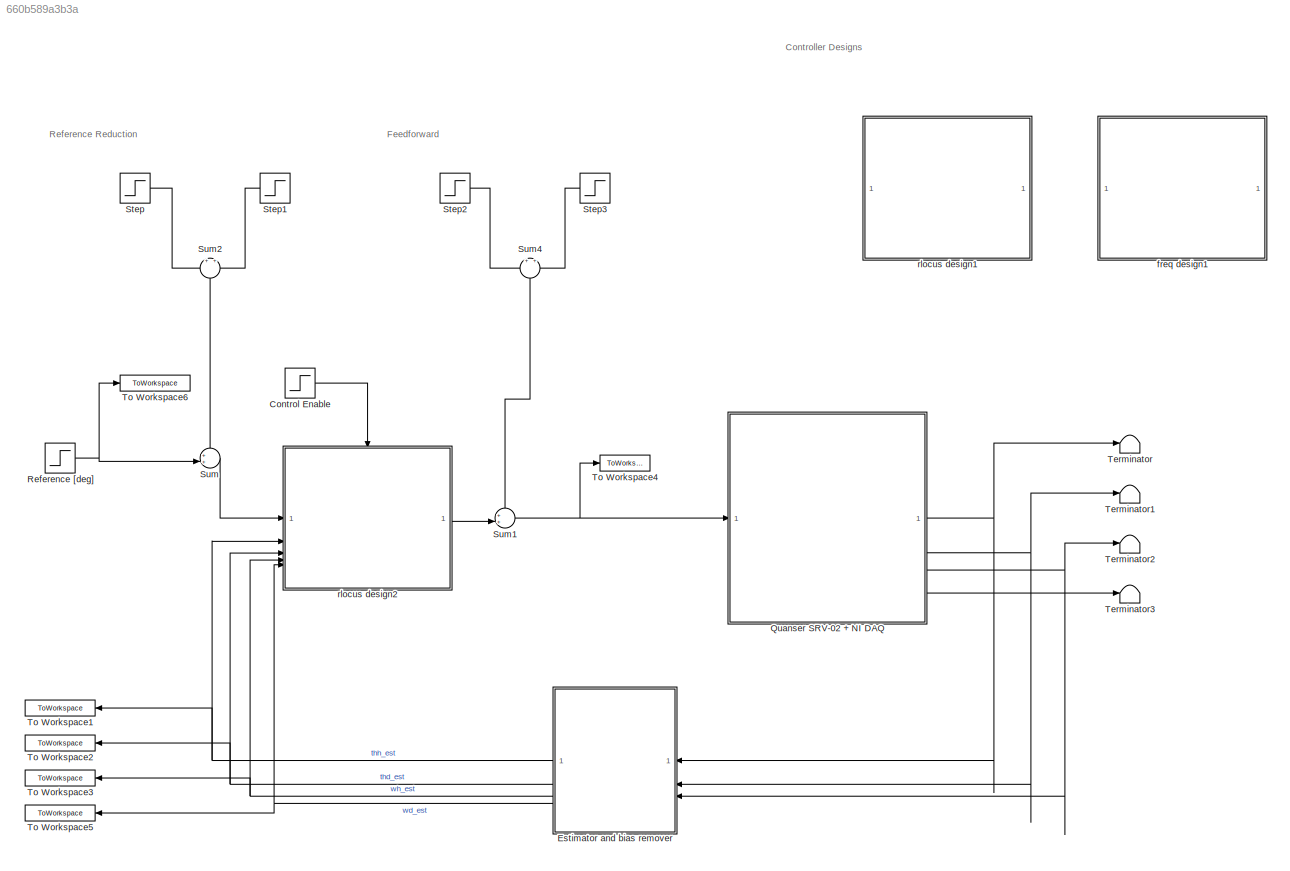
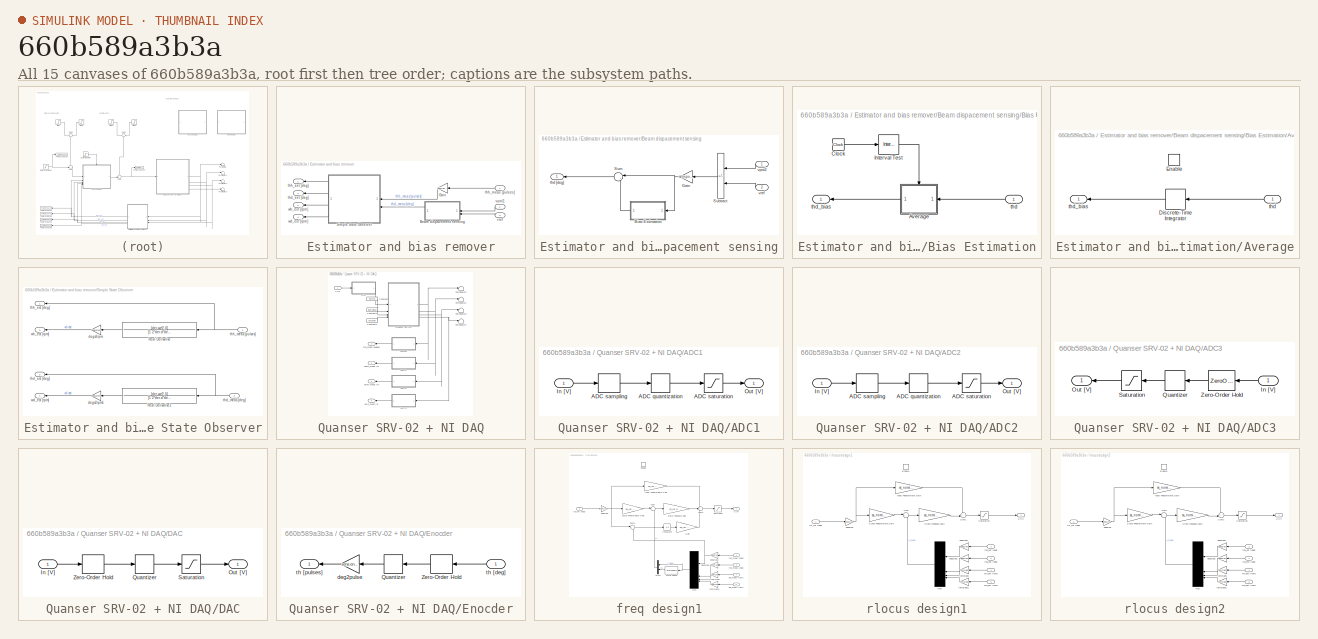
[diagram: thumbnail index - all 15 canvases of the model, root first then tree order]
MODEL slx_660b589a3b3a
KIND model
CONFIG AbsTol = auto
CONFIG EnableMultiTasking = off
CONFIG FixedStep = auto
CONFIG MaxStep = auto
CONFIG MinStep = auto
CONFIG RelTol = auto
CONFIG SampleTimeConstraint = Unconstrained
CONFIG SolverName = VariableStepAuto
CONFIG StartTime = 0.0
CONFIG StopTime = 2
BLOCK [Step] Control Enable
  SampleTime = 0
  Time = 0.8
BLOCK [SubSystem] Estimator and bias remover
  NameLocation = top
BLOCK [SubSystem] Estimator and bias remover/Beam dispacement sensing
BLOCK [SubSystem] Estimator and bias remover/Beam dispacement sensing/Bias Estimation
BLOCK [SubSystem] Estimator and bias remover/Beam dispacement sensing/Bias Estimation/Average
BLOCK [DiscreteIntegrator] Estimator and bias remover/Beam dispacement sensing/Bias Estimation/Average/Discrete-Time Integrator
  ICPrevOutput = DiscIntNeverNeededParam
  ICPrevScaledInput = DiscIntNeverNeededParam
  InitialConditionSetting = Auto
  NameLocation = top
  SampleTime = Ts
  gainval = 1/(0.7-0.2)
BLOCK [EnablePort] Estimator and bias remover/Beam dispacement sensing/Bias Estimation/Average/Enable
BLOCK [Inport] Estimator and bias remover/Beam dispacement sensing/Bias Estimation/Average/thd
  NameLocation = top
BLOCK [Outport] Estimator and bias remover/Beam dispacement sensing/Bias Estimation/Average/thd_bias
  NameLocation = top
BLOCK [Clock] Estimator and bias remover/Beam dispacement sensing/Bias Estimation/Clock
BLOCK [Reference] Estimator and bias remover/Beam dispacement sensing/Bias Estimation/Interval Test  REF=simulink/Logic and Bit
Operations/Interval Test
  SourceBlock = simulink/Logic and Bit\nOperations/Interval Test
  SourceType = Interval Test
BLOCK [Inport] Estimator and bias remover/Beam dispacement sensing/Bias Estimation/thd
  NameLocation = top
BLOCK [Outport] Estimator and bias remover/Beam dispacement sensing/Bias Estimation/thd_bias
  NameLocation = top
BLOCK [Gain] Estimator and bias remover/Beam dispacement sensing/Gain
  Gain = sens.pot2.V2deg
  NameLocation = top
BLOCK [Sum] Estimator and bias remover/Beam dispacement sensing/Subtract
  IconShape = rectangular
  Inputs = +-
  NameLocation = top
BLOCK [Sum] Estimator and bias remover/Beam dispacement sensing/Sum
  Inputs = |+-
  NameLocation = top
BLOCK [Outport] Estimator and bias remover/Beam dispacement sensing/thd [deg]
  NameLocation = top
BLOCK [Inport] Estimator and bias remover/Beam dispacement sensing/vpot2
  NameLocation = top
BLOCK [Inport] Estimator and bias remover/Beam dispacement sensing/vref
  NameLocation = top
  Port = 2
BLOCK [Gain] Estimator and bias remover/Gain
  Gain = sens.enc.pulse2deg
  NameLocation = top
BLOCK [SubSystem] Estimator and bias remover/Simple State Observer
  NameLocation = top
BLOCK [TransferFcn] Estimator and bias remover/Simple State Observer/Real Derivative
  Denominator = [1 2*der.d*der.wc der.wc^2]
  NameLocation = top
  Numerator = [der.wc^2 0]
BLOCK [TransferFcn] Estimator and bias remover/Simple State Observer/Real Derivative1
  Denominator = [1 2*der.d*der.wc der.wc^2]
  NameLocation = top
  Numerator = [der.wc^2 0]
BLOCK [Gain] Estimator and bias remover/Simple State Observer/degs2rpm
  Gain = degs2rpm
BLOCK [Gain] Estimator and bias remover/Simple State Observer/degs2rpm1
  Gain = degs2rpm
BLOCK [Outport] Estimator and bias remover/Simple State Observer/thd_est [deg]
  NameLocation = top
  Port = 2
BLOCK [Inport] Estimator and bias remover/Simple State Observer/thd_meas [deg]
  NameLocation = top
  Port = 2
BLOCK [Outport] Estimator and bias remover/Simple State Observer/thh_est [deg]
  NameLocation = top
BLOCK [Inport] Estimator and bias remover/Simple State Observer/thh_meas [pulses]
  NameLocation = top
BLOCK [Outport] Estimator and bias remover/Simple State Observer/wd_est [rpm]
  NameLocation = top
  Port = 4
BLOCK [Outport] Estimator and bias remover/Simple State Observer/wh_est [rpm]
  NameLocation = top
  Port = 3
BLOCK [Outport] Estimator and bias remover/thd_est [deg]
  NameLocation = top
  Port = 2
BLOCK [Outport] Estimator and bias remover/thh_est [deg]
  NameLocation = top
BLOCK [Inport] Estimator and bias remover/thh_meas [pulses]
  NameLocation = top
BLOCK [Inport] Estimator and bias remover/vpot2
  NameLocation = top
  Port = 2
BLOCK [Inport] Estimator and bias remover/vref
  Port = 3
BLOCK [Outport] Estimator and bias remover/wd_est [rpm]
  NameLocation = top
  Port = 4
BLOCK [Outport] Estimator and bias remover/wh_est [rpm]
  NameLocation = top
  Port = 3
BLOCK [SubSystem] Quanser SRV-02 + NI DAQ
BLOCK [SubSystem] Quanser SRV-02 + NI DAQ/ADC1
BLOCK [Quantizer] Quanser SRV-02 + NI DAQ/ADC1/ADC quantization
  QuantizationInterval = daq.adc.q
BLOCK [ZeroOrderHold] Quanser SRV-02 + NI DAQ/ADC1/ADC sampling
  SampleTime = Ts
BLOCK [Saturate] Quanser SRV-02 + NI DAQ/ADC1/ADC saturation
  LowerLimit = -daq.adc.fs
  UpperLimit = daq.adc.fs
BLOCK [Inport] Quanser SRV-02 + NI DAQ/ADC1/In [V]
BLOCK [Outport] Quanser SRV-02 + NI DAQ/ADC1/Out [V]
BLOCK [SubSystem] Quanser SRV-02 + NI DAQ/ADC2
BLOCK [Quantizer] Quanser SRV-02 + NI DAQ/ADC2/ADC quantization
  QuantizationInterval = daq.adc.q
BLOCK [ZeroOrderHold] Quanser SRV-02 + NI DAQ/ADC2/ADC sampling
  SampleTime = Ts
BLOCK [Saturate] Quanser SRV-02 + NI DAQ/ADC2/ADC saturation
  LowerLimit = -daq.adc.fs
  UpperLimit = daq.adc.fs
BLOCK [Inport] Quanser SRV-02 + NI DAQ/ADC2/In [V]
BLOCK [Outport] Quanser SRV-02 + NI DAQ/ADC2/Out [V]
BLOCK [SubSystem] Quanser SRV-02 + NI DAQ/ADC3
BLOCK [Inport] Quanser SRV-02 + NI DAQ/ADC3/In [V]
BLOCK [Outport] Quanser SRV-02 + NI DAQ/ADC3/Out [V]
BLOCK [Quantizer] Quanser SRV-02 + NI DAQ/ADC3/Quantizer
  QuantizationInterval = daq.adc.q
BLOCK [Saturate] Quanser SRV-02 + NI DAQ/ADC3/Saturation
  LowerLimit = -daq.adc.fs
  UpperLimit = daq.adc.fs
BLOCK [ZeroOrderHold] Quanser SRV-02 + NI DAQ/ADC3/Zero-Order Hold
  SampleTime = Ts
BLOCK [Constant] Quanser SRV-02 + NI DAQ/Constant
  Value = fricType
BLOCK [Constant] Quanser SRV-02 + NI DAQ/Constant1
  SampleTime = Inf
  Value = thb0*pi/180
BLOCK [Constant] Quanser SRV-02 + NI DAQ/Constant2
  SampleTime = Inf
  Value = lockShaft
BLOCK [SubSystem] Quanser SRV-02 + NI DAQ/DAC
BLOCK [Inport] Quanser SRV-02 + NI DAQ/DAC/In [V]
BLOCK [Outport] Quanser SRV-02 + NI DAQ/DAC/Out [V]
BLOCK [Quantizer] Quanser SRV-02 + NI DAQ/DAC/Quantizer
  QuantizationInterval = daq.dac.q
BLOCK [Saturate] Quanser SRV-02 + NI DAQ/DAC/Saturation
  LowerLimit = -daq.dac.fs
  UpperLimit = daq.dac.fs
BLOCK [ZeroOrderHold] Quanser SRV-02 + NI DAQ/DAC/Zero-Order Hold
  SampleTime = Ts
BLOCK [SubSystem] Quanser SRV-02 + NI DAQ/Enocder
BLOCK [Quantizer] Quanser SRV-02 + NI DAQ/Enocder/Quantizer
  QuantizationInterval = sens.enc.pulse2deg
BLOCK [ZeroOrderHold] Quanser SRV-02 + NI DAQ/Enocder/Zero-Order Hold
  SampleTime = Ts
BLOCK [Gain] Quanser SRV-02 + NI DAQ/Enocder/deg2pulse
  Gain = sens.enc.deg2pulse
BLOCK [Inport] Quanser SRV-02 + NI DAQ/Enocder/th [deg]
BLOCK [Outport] Quanser SRV-02 + NI DAQ/Enocder/th [pulses]
BLOCK [ModelReference] Quanser SRV-02 + NI DAQ/Quanser SRV-02
  CopyOfModelProtected = on
  ModelNameDialog = SRV02RL_win64.slxp
  ModelReferenceVersion = 1.76
BLOCK [Terminator] Quanser SRV-02 + NI DAQ/Terminator1
BLOCK [Terminator] Quanser SRV-02 + NI DAQ/Terminator2
BLOCK [Terminator] Quanser SRV-02 + NI DAQ/Terminator3
BLOCK [Terminator] Quanser SRV-02 + NI DAQ/Terminator4
BLOCK [Outport] Quanser SRV-02 + NI DAQ/thh_meas [pulses]
BLOCK [Inport] Quanser SRV-02 + NI DAQ/u [V]
BLOCK [Outport] Quanser SRV-02 + NI DAQ/uPot2_meas [V]
  Port = 2
BLOCK [Outport] Quanser SRV-02 + NI DAQ/uRef_meas [V]
  Port = 3
BLOCK [Outport] Quanser SRV-02 + NI DAQ/uRs_meas [V]
  Port = 4
BLOCK [Step] Reference [deg]
  After = simul.stepdeg
  SampleTime = Ts
BLOCK [Step] Step
  After = -challenge.refAmp
  SampleTime = 0
BLOCK [Step] Step1
  After = challenge.refAmp
  NameLocation = top
  SampleTime = 0
  Time = 1 + challenge.tinterval
BLOCK [Step] Step2
  After = 50
  SampleTime = 0
BLOCK [Step] Step3
  After = -50
  NameLocation = top
  SampleTime = 0
  Time = 1 + challenge.uinterval
BLOCK [Sum] Sum
  Inputs = ++|
BLOCK [Sum] Sum1
  Inputs = ++|
BLOCK [Sum] Sum2
  Inputs = +|+
  NameLocation = left
BLOCK [Sum] Sum4
  Inputs = +|+
  NameLocation = left
BLOCK [Terminator] Terminator
BLOCK [Terminator] Terminator1
BLOCK [Terminator] Terminator2
BLOCK [Terminator] Terminator3
BLOCK [ToWorkspace] To Workspace1
  FixptAsFi = on
  MaxDataPoints = inf
  SampleTime = Ts
  SaveFormat = Structure With Time
  VariableName = thh_est
BLOCK [ToWorkspace] To Workspace2
  FixptAsFi = on
  MaxDataPoints = inf
  SampleTime = Ts
  SaveFormat = Structure With Time
  VariableName = thd_est
BLOCK [ToWorkspace] To Workspace3
  FixptAsFi = on
  MaxDataPoints = inf
  SampleTime = Ts
  SaveFormat = Structure With Time
  VariableName = wh_est
BLOCK [ToWorkspace] To Workspace4
  FixptAsFi = on
  MaxDataPoints = inf
  SampleTime = Ts
  SaveFormat = Structure With Time
  VariableName = u
BLOCK [ToWorkspace] To Workspace5
  FixptAsFi = on
  MaxDataPoints = inf
  SampleTime = Ts
  SaveFormat = Structure With Time
  VariableName = wd_est
BLOCK [ToWorkspace] To Workspace6
  FixptAsFi = on
  MaxDataPoints = inf
  NameLocation = top
  SampleTime = -1
  SaveFormat = Structure With Time
  VariableName = thh_ref
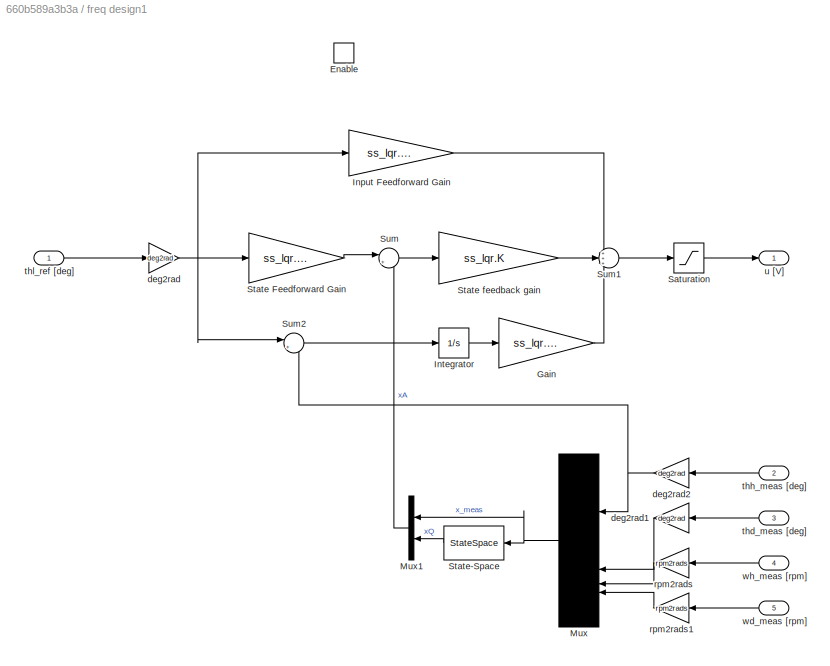
BLOCK [SubSystem] freq design1
BLOCK [EnablePort] freq design1/Enable
BLOCK [Gain] freq design1/Gain
  Gain = ss_lqr.Ki
BLOCK [Gain] freq design1/Input Feedforward Gain
  Gain = ss_lqr.Nu
BLOCK [Integrator] freq design1/Integrator
BLOCK [Mux] freq design1/Mux
  DisplayOption = signals
  NameLocation = top
BLOCK [Mux] freq design1/Mux1
  DisplayOption = bar
  Inputs = 2
  NameLocation = top
BLOCK [Saturate] freq design1/Saturation
  LowerLimit = -10
  UpperLimit = 10
BLOCK [Gain] freq design1/State Feedforward Gain
  Gain = ss_lqr.Nx
BLOCK [Gain] freq design1/State feedback gain
  Gain = ss_lqr.K
  Multiplication = Matrix(K*u)
BLOCK [StateSpace] freq design1/State-Space
  A = ss_lqr.AQ
  B = ss_lqr.BQ
  C = ss_lqr.I
  D = ss_lqr.zero
  InitialCondition = 0
  NameLocation = top
BLOCK [Sum] freq design1/Sum
  Inputs = |+-
BLOCK [Sum] freq design1/Sum1
  Inputs = +++
BLOCK [Sum] freq design1/Sum2
  Inputs = |+-
BLOCK [Gain] freq design1/deg2rad
  Gain = deg2rad
BLOCK [Gain] freq design1/deg2rad1
  Gain = deg2rad
  NameLocation = top
BLOCK [Gain] freq design1/deg2rad2
  Gain = deg2rad
  NameLocation = top
BLOCK [Gain] freq design1/rpm2rads
  Gain = rpm2rads
BLOCK [Gain] freq design1/rpm2rads1
  Gain = rpm2rads
BLOCK [Inport] freq design1/thd_meas [deg]
  NameLocation = top
  Port = 3
BLOCK [Inport] freq design1/thh_meas [deg]
  NameLocation = top
  Port = 2
BLOCK [Inport] freq design1/thl_ref [deg]
BLOCK [Outport] freq design1/u [V]
BLOCK [Inport] freq design1/wd_meas [rpm]
  NameLocation = top
  Port = 5
BLOCK [Inport] freq design1/wh_meas [rpm]
  NameLocation = top
  Port = 4
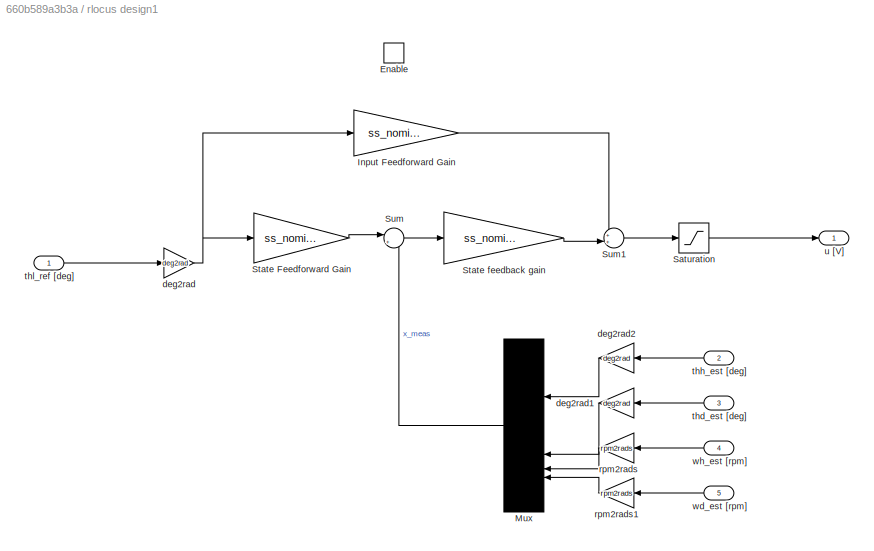
BLOCK [SubSystem] rlocus design1
BLOCK [EnablePort] rlocus design1/Enable
BLOCK [Gain] rlocus design1/Input Feedforward Gain
  Gain = ss_nominal.Nu
BLOCK [Mux] rlocus design1/Mux
  DisplayOption = signals
  NameLocation = top
BLOCK [Saturate] rlocus design1/Saturation
  LowerLimit = -10
  UpperLimit = 10
BLOCK [Gain] rlocus design1/State Feedforward Gain
  Gain = ss_nominal.Nx
BLOCK [Gain] rlocus design1/State feedback gain
  Gain = ss_nominal.K
  Multiplication = Matrix(K*u)
BLOCK [Sum] rlocus design1/Sum
  Inputs = |+-
BLOCK [Sum] rlocus design1/Sum1
  Inputs = ++|
BLOCK [Gain] rlocus design1/deg2rad
  Gain = deg2rad
BLOCK [Gain] rlocus design1/deg2rad1
  Gain = deg2rad
  NameLocation = top
BLOCK [Gain] rlocus design1/deg2rad2
  Gain = deg2rad
  NameLocation = top
BLOCK [Gain] rlocus design1/rpm2rads
  Gain = rpm2rads
BLOCK [Gain] rlocus design1/rpm2rads1
  Gain = rpm2rads
BLOCK [Inport] rlocus design1/thd_est [deg]
  NameLocation = top
  Port = 3
BLOCK [Inport] rlocus design1/thh_est [deg]
  NameLocation = top
  Port = 2
BLOCK [Inport] rlocus design1/thl_ref [deg]
BLOCK [Outport] rlocus design1/u [V]
BLOCK [Inport] rlocus design1/wd_est [rpm]
  NameLocation = top
  Port = 5
BLOCK [Inport] rlocus design1/wh_est [rpm]
  NameLocation = top
  Port = 4
BLOCK [SubSystem] rlocus design2
BLOCK [EnablePort] rlocus design2/Enable
BLOCK [Gain] rlocus design2/Input Feedforward Gain
  Gain = ss_nominal.Nu
BLOCK [Mux] rlocus design2/Mux
  DisplayOption = signals
  NameLocation = top
BLOCK [Saturate] rlocus design2/Saturation
  LowerLimit = -10
  UpperLimit = 10
BLOCK [Gain] rlocus design2/State Feedforward Gain
  Gain = ss_nominal.Nx
BLOCK [Gain] rlocus design2/State feedback gain
  Gain = ss_nominal.K
  Multiplication = Matrix(K*u)
BLOCK [Sum] rlocus design2/Sum
  Inputs = |+-
BLOCK [Sum] rlocus design2/Sum1
  Inputs = ++|
BLOCK [Gain] rlocus design2/deg2rad
  Gain = deg2rad
BLOCK [Gain] rlocus design2/deg2rad1
  Gain = deg2rad
  NameLocation = top
BLOCK [Gain] rlocus design2/deg2rad2
  Gain = deg2rad
  NameLocation = top
BLOCK [Gain] rlocus design2/rpm2rads
  Gain = rpm2rads
BLOCK [Gain] rlocus design2/rpm2rads1
  Gain = rpm2rads
BLOCK [Inport] rlocus design2/thd_est [deg]
  NameLocation = top
  Port = 3
BLOCK [Inport] rlocus design2/thh_est [deg]
  NameLocation = top
  Port = 2
BLOCK [Inport] rlocus design2/thl_ref [deg]
BLOCK [Outport] rlocus design2/u [V]
BLOCK [Inport] rlocus design2/wd_est [rpm]
  NameLocation = top
  Port = 5
BLOCK [Inport] rlocus design2/wh_est [rpm]
  NameLocation = top
  Port = 4
ANNOTATION (root): Controller Designs
ANNOTATION (root): Feedforward
ANNOTATION (root): Reference Reduction
LINE Control Enable:1 -> rlocus design2:enable
LINE Estimator and bias remover/Beam dispacement sensing/Bias Estimation/Average/Discrete-Time Integrator:1 -> Estimator and bias remover/Beam dispacement sensing/Bias Estimation/Average/thd_bias:1
LINE Estimator and bias remover/Beam dispacement sensing/Bias Estimation/Average/thd:1 -> Estimator and bias remover/Beam dispacement sensing/Bias Estimation/Average/Discrete-Time Integrator:1
LINE Estimator and bias remover/Beam dispacement sensing/Bias Estimation/Average:1 -> Estimator and bias remover/Beam dispacement sensing/Bias Estimation/thd_bias:1
LINE Estimator and bias remover/Beam dispacement sensing/Bias Estimation/Clock:1 -> Estimator and bias remover/Beam dispacement sensing/Bias Estimation/Interval Test:1
LINE Estimator and bias remover/Beam dispacement sensing/Bias Estimation/Interval Test:1 -> Estimator and bias remover/Beam dispacement sensing/Bias Estimation/Average:enable
LINE Estimator and bias remover/Beam dispacement sensing/Bias Estimation/thd:1 -> Estimator and bias remover/Beam dispacement sensing/Bias Estimation/Average:1
LINE Estimator and bias remover/Beam dispacement sensing/Bias Estimation:1 -> Estimator and bias remover/Beam dispacement sensing/Sum:2
NET Estimator and bias remover/Beam dispacement sensing/Gain:1 -> Estimator and bias remover/Beam dispacement sensing/Bias Estimation:1, Estimator and bias remover/Beam dispacement sensing/Sum:1
LINE Estimator and bias remover/Beam dispacement sensing/Subtract:1 -> Estimator and bias remover/Beam dispacement sensing/Gain:1
LINE Estimator and bias remover/Beam dispacement sensing/Sum:1 -> Estimator and bias remover/Beam dispacement sensing/thd [deg]:1
LINE Estimator and bias remover/Beam dispacement sensing/vpot2:1 -> Estimator and bias remover/Beam dispacement sensing/Subtract:1
LINE Estimator and bias remover/Beam dispacement sensing/vref:1 -> Estimator and bias remover/Beam dispacement sensing/Subtract:2
LINE Estimator and bias remover/Beam dispacement sensing:1 -> Estimator and bias remover/Simple State Observer:2
LINE Estimator and bias remover/Gain:1 -> Estimator and bias remover/Simple State Observer:1
LINE Estimator and bias remover/Simple State Observer/Real Derivative1:1 -> Estimator and bias remover/Simple State Observer/degs2rpm1:1
LINE Estimator and bias remover/Simple State Observer/Real Derivative:1 -> Estimator and bias remover/Simple State Observer/degs2rpm:1
LINE Estimator and bias remover/Simple State Observer/degs2rpm1:1 -> Estimator and bias remover/Simple State Observer/wd_est [rpm]:1
LINE Estimator and bias remover/Simple State Observer/degs2rpm:1 -> Estimator and bias remover/Simple State Observer/wh_est [rpm]:1
NET Estimator and bias remover/Simple State Observer/thd_meas [deg]:1 -> Estimator and bias remover/Simple State Observer/Real Derivative1:1, Estimator and bias remover/Simple State Observer/thd_est [deg]:1
NET Estimator and bias remover/Simple State Observer/thh_meas [pulses]:1 -> Estimator and bias remover/Simple State Observer/Real Derivative:1, Estimator and bias remover/Simple State Observer/thh_est [deg]:1
LINE Estimator and bias remover/Simple State Observer:1 -> Estimator and bias remover/thh_est [deg]:1
LINE Estimator and bias remover/Simple State Observer:2 -> Estimator and bias remover/thd_est [deg]:1
LINE Estimator and bias remover/Simple State Observer:3 -> Estimator and bias remover/wh_est [rpm]:1
LINE Estimator and bias remover/Simple State Observer:4 -> Estimator and bias remover/wd_est [rpm]:1
LINE Estimator and bias remover/thh_meas [pulses]:1 -> Estimator and bias remover/Gain:1
LINE Estimator and bias remover/vpot2:1 -> Estimator and bias remover/Beam dispacement sensing:1
LINE Estimator and bias remover/vref:1 -> Estimator and bias remover/Beam dispacement sensing:2
NET Estimator and bias remover:1 -> To Workspace1:1, rlocus design2:2
NET Estimator and bias remover:2 -> To Workspace2:1, rlocus design2:3
NET Estimator and bias remover:3 -> To Workspace3:1, rlocus design2:4
NET Estimator and bias remover:4 -> To Workspace5:1, rlocus design2:5
LINE Quanser SRV-02 + NI DAQ/ADC1/ADC quantization:1 -> Quanser SRV-02 + NI DAQ/ADC1/ADC saturation:1
LINE Quanser SRV-02 + NI DAQ/ADC1/ADC sampling:1 -> Quanser SRV-02 + NI DAQ/ADC1/ADC quantization:1
LINE Quanser SRV-02 + NI DAQ/ADC1/ADC saturation:1 -> Quanser SRV-02 + NI DAQ/ADC1/Out [V]:1
LINE Quanser SRV-02 + NI DAQ/ADC1/In [V]:1 -> Quanser SRV-02 + NI DAQ/ADC1/ADC sampling:1
LINE Quanser SRV-02 + NI DAQ/ADC1:1 -> Quanser SRV-02 + NI DAQ/uPot2_meas [V]:1
LINE Quanser SRV-02 + NI DAQ/ADC2/ADC quantization:1 -> Quanser SRV-02 + NI DAQ/ADC2/ADC saturation:1
LINE Quanser SRV-02 + NI DAQ/ADC2/ADC sampling:1 -> Quanser SRV-02 + NI DAQ/ADC2/ADC quantization:1
LINE Quanser SRV-02 + NI DAQ/ADC2/ADC saturation:1 -> Quanser SRV-02 + NI DAQ/ADC2/Out [V]:1
LINE Quanser SRV-02 + NI DAQ/ADC2/In [V]:1 -> Quanser SRV-02 + NI DAQ/ADC2/ADC sampling:1
LINE Quanser SRV-02 + NI DAQ/ADC2:1 -> Quanser SRV-02 + NI DAQ/uRef_meas [V]:1
LINE Quanser SRV-02 + NI DAQ/ADC3/In [V]:1 -> Quanser SRV-02 + NI DAQ/ADC3/Zero-Order Hold:1
LINE Quanser SRV-02 + NI DAQ/ADC3/Quantizer:1 -> Quanser SRV-02 + NI DAQ/ADC3/Saturation:1
LINE Quanser SRV-02 + NI DAQ/ADC3/Saturation:1 -> Quanser SRV-02 + NI DAQ/ADC3/Out [V]:1
LINE Quanser SRV-02 + NI DAQ/ADC3/Zero-Order Hold:1 -> Quanser SRV-02 + NI DAQ/ADC3/Quantizer:1
LINE Quanser SRV-02 + NI DAQ/ADC3:1 -> Quanser SRV-02 + NI DAQ/uRs_meas [V]:1
LINE Quanser SRV-02 + NI DAQ/Constant1:1 -> Quanser SRV-02 + NI DAQ/Quanser SRV-02:3
LINE Quanser SRV-02 + NI DAQ/Constant2:1 -> Quanser SRV-02 + NI DAQ/Quanser SRV-02:4
LINE Quanser SRV-02 + NI DAQ/Constant:1 -> Quanser SRV-02 + NI DAQ/Quanser SRV-02:2
LINE Quanser SRV-02 + NI DAQ/DAC/In [V]:1 -> Quanser SRV-02 + NI DAQ/DAC/Zero-Order Hold:1
LINE Quanser SRV-02 + NI DAQ/DAC/Quantizer:1 -> Quanser SRV-02 + NI DAQ/DAC/Saturation:1
LINE Quanser SRV-02 + NI DAQ/DAC/Saturation:1 -> Quanser SRV-02 + NI DAQ/DAC/Out [V]:1
LINE Quanser SRV-02 + NI DAQ/DAC/Zero-Order Hold:1 -> Quanser SRV-02 + NI DAQ/DAC/Quantizer:1
LINE Quanser SRV-02 + NI DAQ/DAC:1 -> Quanser SRV-02 + NI DAQ/Quanser SRV-02:1
LINE Quanser SRV-02 + NI DAQ/Enocder/Quantizer:1 -> Quanser SRV-02 + NI DAQ/Enocder/deg2pulse:1
LINE Quanser SRV-02 + NI DAQ/Enocder/Zero-Order Hold:1 -> Quanser SRV-02 + NI DAQ/Enocder/Quantizer:1
LINE Quanser SRV-02 + NI DAQ/Enocder/deg2pulse:1 -> Quanser SRV-02 + NI DAQ/Enocder/th [pulses]:1
LINE Quanser SRV-02 + NI DAQ/Enocder/th [deg]:1 -> Quanser SRV-02 + NI DAQ/Enocder/Zero-Order Hold:1
LINE Quanser SRV-02 + NI DAQ/Enocder:1 -> Quanser SRV-02 + NI DAQ/thh_meas [pulses]:1
NET Quanser SRV-02 + NI DAQ/Quanser SRV-02:1 -> Quanser SRV-02 + NI DAQ/Enocder:1, Quanser SRV-02 + NI DAQ/Terminator2:1
NET Quanser SRV-02 + NI DAQ/Quanser SRV-02:2 -> Quanser SRV-02 + NI DAQ/ADC1:1, Quanser SRV-02 + NI DAQ/Terminator1:1
NET Quanser SRV-02 + NI DAQ/Quanser SRV-02:3 -> Quanser SRV-02 + NI DAQ/ADC2:1, Quanser SRV-02 + NI DAQ/Terminator3:1
NET Quanser SRV-02 + NI DAQ/Quanser SRV-02:4 -> Quanser SRV-02 + NI DAQ/ADC3:1, Quanser SRV-02 + NI DAQ/Terminator4:1
LINE Quanser SRV-02 + NI DAQ/u [V]:1 -> Quanser SRV-02 + NI DAQ/DAC:1
NET Quanser SRV-02 + NI DAQ:1 -> Estimator and bias remover:1, Terminator:1
NET Quanser SRV-02 + NI DAQ:2 -> Estimator and bias remover:2, Terminator1:1
NET Quanser SRV-02 + NI DAQ:3 -> Estimator and bias remover:3, Terminator2:1
LINE Quanser SRV-02 + NI DAQ:4 -> Terminator3:1
NET Reference [deg]:1 -> Sum:2, To Workspace6:1
LINE Step1:1 -> Sum2:2
LINE Step2:1 -> Sum4:1
LINE Step3:1 -> Sum4:2
LINE Step:1 -> Sum2:1
NET Sum1:1 -> Quanser SRV-02 + NI DAQ:1, To Workspace4:1
LINE Sum2:1 -> Sum:1
LINE Sum4:1 -> Sum1:1
LINE Sum:1 -> rlocus design2:1
LINE freq design1/Gain:1 -> freq design1/Sum1:3
LINE freq design1/Input Feedforward Gain:1 -> freq design1/Sum1:1
LINE freq design1/Integrator:1 -> freq design1/Gain:1
LINE freq design1/Mux1:1 -> freq design1/Sum:2
NET freq design1/Mux:1 -> freq design1/Mux1:1, freq design1/State-Space:1
LINE freq design1/Saturation:1 -> freq design1/u [V]:1
LINE freq design1/State Feedforward Gain:1 -> freq design1/Sum:1
LINE freq design1/State feedback gain:1 -> freq design1/Sum1:2
LINE freq design1/State-Space:1 -> freq design1/Mux1:2
LINE freq design1/Sum1:1 -> freq design1/Saturation:1
LINE freq design1/Sum2:1 -> freq design1/Integrator:1
LINE freq design1/Sum:1 -> freq design1/State feedback gain:1
LINE freq design1/deg2rad1:1 -> freq design1/Mux:2
NET freq design1/deg2rad2:1 -> freq design1/Mux:1, freq design1/Sum2:2
NET freq design1/deg2rad:1 -> freq design1/Input Feedforward Gain:1, freq design1/State Feedforward Gain:1, freq design1/Sum2:1
LINE freq design1/rpm2rads1:1 -> freq design1/Mux:4
LINE freq design1/rpm2rads:1 -> freq design1/Mux:3
LINE freq design1/thd_meas [deg]:1 -> freq design1/deg2rad1:1
LINE freq design1/thh_meas [deg]:1 -> freq design1/deg2rad2:1
LINE freq design1/thl_ref [deg]:1 -> freq design1/deg2rad:1
LINE freq design1/wd_meas [rpm]:1 -> freq design1/rpm2rads1:1
LINE freq design1/wh_meas [rpm]:1 -> freq design1/rpm2rads:1
LINE rlocus design1/Input Feedforward Gain:1 -> rlocus design1/Sum1:1
LINE rlocus design1/Mux:1 -> rlocus design1/Sum:2
LINE rlocus design1/Saturation:1 -> rlocus design1/u [V]:1
LINE rlocus design1/State Feedforward Gain:1 -> rlocus design1/Sum:1
LINE rlocus design1/State feedback gain:1 -> rlocus design1/Sum1:2
LINE rlocus design1/Sum1:1 -> rlocus design1/Saturation:1
LINE rlocus design1/Sum:1 -> rlocus design1/State feedback gain:1
LINE rlocus design1/deg2rad1:1 -> rlocus design1/Mux:2
LINE rlocus design1/deg2rad2:1 -> rlocus design1/Mux:1
NET rlocus design1/deg2rad:1 -> rlocus design1/Input Feedforward Gain:1, rlocus design1/State Feedforward Gain:1
LINE rlocus design1/rpm2rads1:1 -> rlocus design1/Mux:4
LINE rlocus design1/rpm2rads:1 -> rlocus design1/Mux:3
LINE rlocus design1/thd_est [deg]:1 -> rlocus design1/deg2rad1:1
LINE rlocus design1/thh_est [deg]:1 -> rlocus design1/deg2rad2:1
LINE rlocus design1/thl_ref [deg]:1 -> rlocus design1/deg2rad:1
LINE rlocus design1/wd_est [rpm]:1 -> rlocus design1/rpm2rads1:1
LINE rlocus design1/wh_est [rpm]:1 -> rlocus design1/rpm2rads:1
LINE rlocus design2/Input Feedforward Gain:1 -> rlocus design2/Sum1:1
LINE rlocus design2/Mux:1 -> rlocus design2/Sum:2
LINE rlocus design2/Saturation:1 -> rlocus design2/u [V]:1
LINE rlocus design2/State Feedforward Gain:1 -> rlocus design2/Sum:1
LINE rlocus design2/State feedback gain:1 -> rlocus design2/Sum1:2
LINE rlocus design2/Sum1:1 -> rlocus design2/Saturation:1
LINE rlocus design2/Sum:1 -> rlocus design2/State feedback gain:1
LINE rlocus design2/deg2rad1:1 -> rlocus design2/Mux:2
LINE rlocus design2/deg2rad2:1 -> rlocus design2/Mux:1
NET rlocus design2/deg2rad:1 -> rlocus design2/Input Feedforward Gain:1, rlocus design2/State Feedforward Gain:1
LINE rlocus design2/rpm2rads1:1 -> rlocus design2/Mux:4
LINE rlocus design2/rpm2rads:1 -> rlocus design2/Mux:3
LINE rlocus design2/thd_est [deg]:1 -> rlocus design2/deg2rad1:1
LINE rlocus design2/thh_est [deg]:1 -> rlocus design2/deg2rad2:1
LINE rlocus design2/thl_ref [deg]:1 -> rlocus design2/deg2rad:1
LINE rlocus design2/wd_est [rpm]:1 -> rlocus design2/rpm2rads1:1
LINE rlocus design2/wh_est [rpm]:1 -> rlocus design2/rpm2rads:1
LINE rlocus design2:1 -> Sum1:2
note: NET lines group one-source signal fan-out (src -> all destinations, sorted); 1:1 wires keep LINE
